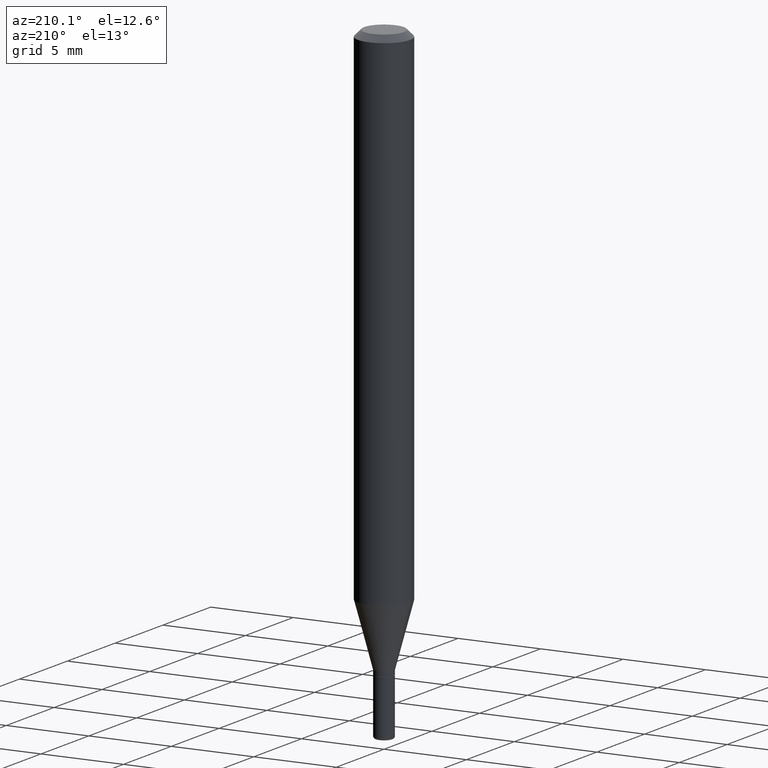
[diagram: clean part render]
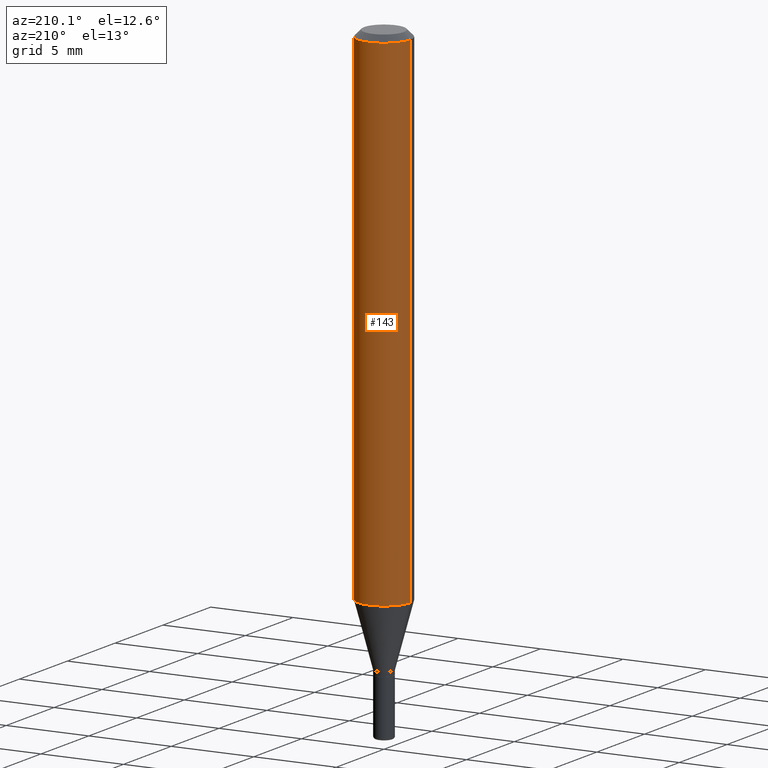
[diagram: same view with one face highlighted and labeled with its STEP entity id]
A machine part, auxiliary view. The second image highlights one B-rep face of the part: STEP entity #143.
In plain terms, the highlighted cylindrical surface (edge-blend (fillet) strip) has radius 1.5875 mm, axis along (-0, 0, 1).
Its self-contained STEP definition (entity closure, byte-faithful):
#3 = VERTEX_POINT ( 'NONE', #460 ) ;
#11 = DIRECTION ( 'NONE',  ( 1.000000000000000000, -6.982962677686266711E-15, 0.000000000000000000 ) ) ;
#74 = CYLINDRICAL_SURFACE ( 'NONE', #77, 0.06250000000000000000 ) ;
#77 = AXIS2_PLACEMENT_3D ( 'NONE', #277, #241, #426 ) ;
#84 = DIRECTION ( 'NONE',  ( -2.445468806185136597E-29, 3.491481338843145583E-15, 1.000000000000000000 ) ) ;
#93 = LINE ( 'NONE', #408, #369 ) ;
#114 = FACE_OUTER_BOUND ( 'NONE', #262, .T. ) ;
#126 = ORIENTED_EDGE ( 'NONE', *, *, #400, .T. ) ;
#128 = DIRECTION ( 'NONE',  ( -2.445468806185136877E-29, 3.491481338843145188E-15, 1.000000000000000000 ) ) ;
#131 = LINE ( 'NONE', #289, #393 ) ;
#136 = CARTESIAN_POINT ( 'NONE',  ( -0.06250000000000000000, -1.686967792252668322E-15, -0.01499999999999970281 ) ) ;
#143 = ADVANCED_FACE ( 'NONE', ( #114 ), #74, .T. ) ;
#149 = CIRCLE ( 'NONE', #354, 0.06250000000000000000 ) ;
#178 = CARTESIAN_POINT ( 'NONE',  ( 0.06250000000000000000, -4.646176951478207651E-15, -1.205717967697245596 ) ) ;
#198 = ORIENTED_EDGE ( 'NONE', *, *, #396, .F. ) ;
#216 = EDGE_CURVE ( 'NONE', #463, #255, #149, .T. ) ;
#241 = DIRECTION ( 'NONE',  ( -2.445468806185136597E-29, 3.491481338843145583E-15, 1.000000000000000000 ) ) ;
#250 = DIRECTION ( 'NONE',  ( 1.000000000000000000, -6.982962677686270655E-15, 0.000000000000000000 ) ) ;
#251 = CARTESIAN_POINT ( 'NONE',  ( 0.06250000000000000000, -4.888073874380378612E-16, -0.01499999999999970281 ) ) ;
#252 = DIRECTION ( 'NONE',  ( -2.445468806185136597E-29, 3.491481338843145583E-15, 1.000000000000000000 ) ) ;
#255 = VERTEX_POINT ( 'NONE', #136 ) ;
#262 = EDGE_LOOP ( 'NONE', ( #126, #279, #316, #198 ) ) ;
#275 = AXIS2_PLACEMENT_3D ( 'NONE', #285, #84, #250 ) ;
#277 = CARTESIAN_POINT ( 'NONE',  ( 0.000000000000000000, 0.000000000000000000, 0.000000000000000000 ) ) ;
#279 = ORIENTED_EDGE ( 'NONE', *, *, #461, .T. ) ;
#285 = CARTESIAN_POINT ( 'NONE',  ( 2.948545679060552191E-29, -4.209741784122815192E-15, -1.205717967697245596 ) ) ;
#289 = CARTESIAN_POINT ( 'NONE',  ( 0.06250000000000000000, -4.364351673553916694E-16, 3.047610484872459871E-30 ) ) ;
#293 = VERTEX_POINT ( 'NONE', #178 ) ;
#316 = ORIENTED_EDGE ( 'NONE', *, *, #216, .F. ) ;
#324 = DIRECTION ( 'NONE',  ( -2.445468806185136877E-29, 3.491481338843145188E-15, 1.000000000000000000 ) ) ;
#338 = CIRCLE ( 'NONE', #275, 0.06250000000000000000 ) ;
#354 = AXIS2_PLACEMENT_3D ( 'NONE', #398, #252, #11 ) ;
#369 = VECTOR ( 'NONE', #324, 39.37007874015748143 ) ;
#393 = VECTOR ( 'NONE', #128, 39.37007874015748143 ) ;
#396 = EDGE_CURVE ( 'NONE', #293, #463, #131, .T. ) ;
#398 = CARTESIAN_POINT ( 'NONE',  ( 3.668203209277632395E-31, -5.237222008264614861E-17, -0.01499999999999970281 ) ) ;
#400 = EDGE_CURVE ( 'NONE', #293, #3, #338, .T. ) ;
#408 = CARTESIAN_POINT ( 'NONE',  ( -0.06250000000000000000, 4.440892098500626162E-16, -3.074334431409316114E-30 ) ) ;
#426 = DIRECTION ( 'NONE',  ( 1.000000000000000000, -6.982962677686266711E-15, 4.876176775795935793E-29 ) ) ;
#460 = CARTESIAN_POINT ( 'NONE',  ( -0.06250000000000000000, -3.765652574272752576E-15, -1.205717967697245596 ) ) ;
#461 = EDGE_CURVE ( 'NONE', #3, #255, #93, .T. ) ;
#463 = VERTEX_POINT ( 'NONE', #251 ) ;